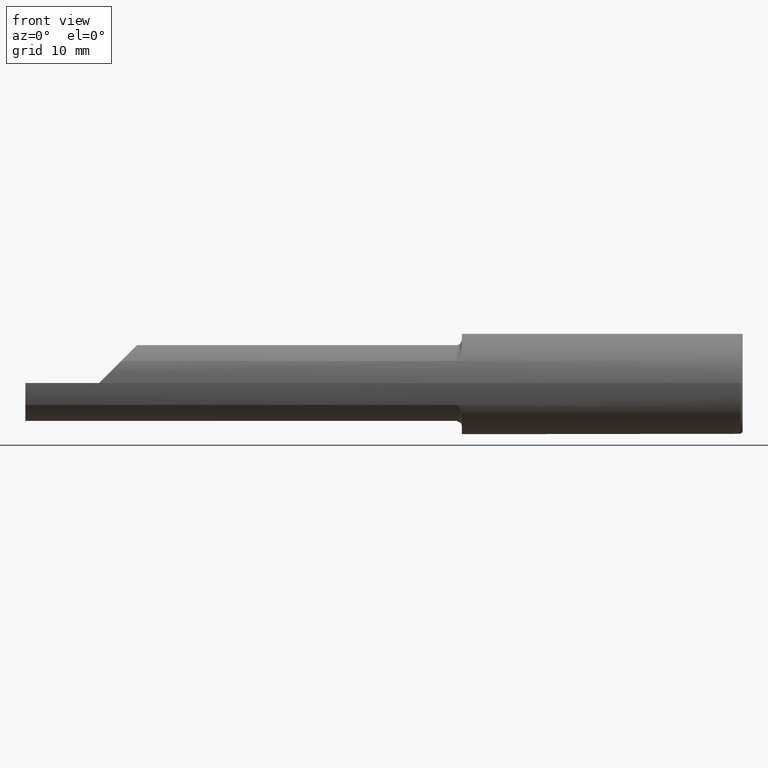
[diagram: clean part render]
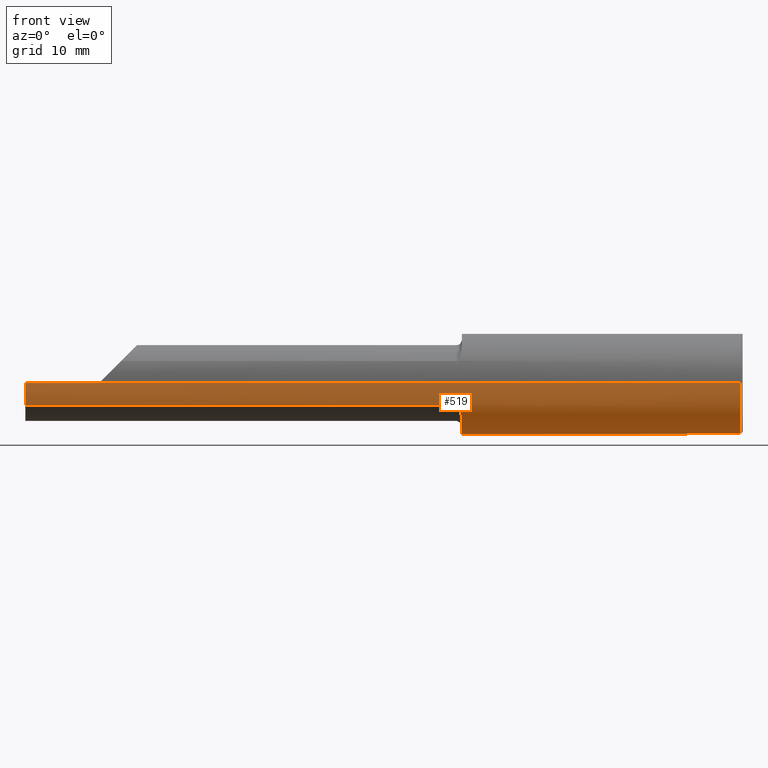
[diagram: same view with one face highlighted and labeled with its STEP entity id]
A machine part, front view. The second image highlights one B-rep face of the part: STEP entity #519.
In plain terms, the highlighted cylindrical surface (partial cylindrical patch) has radius 6.3462 mm, axis along (1, 0, -0).
Its self-contained STEP definition (entity closure, byte-faithful):
#8 = DIRECTION ( 'NONE',  ( 0.000000000000000000, 1.000000000000000000, 0.000000000000000000 ) ) ;
#11 = CARTESIAN_POINT ( 'NONE',  ( -1.370000000000000773, -0.1671052035161186000, -0.1859846937724914939 ) ) ;
#59 = LINE ( 'NONE', #908, #350 ) ;
#60 = VERTEX_POINT ( 'NONE', #581 ) ;
#73 = CARTESIAN_POINT ( 'NONE',  ( -1.393766764954792459, -0.2258019038076130303, -0.1069510296203706190 ) ) ;
#79 = CARTESIAN_POINT ( 'NONE',  ( -3.500000000000000000, -0.2258019038076149176, -0.1069510296203672051 ) ) ;
#96 = CIRCLE ( 'NONE', #554, 0.2498499999999999888 ) ;
#112 = AXIS2_PLACEMENT_3D ( 'NONE', #845, #846, #8 ) ;
#120 = VERTEX_POINT ( 'NONE', #480 ) ;
#124 = CARTESIAN_POINT ( 'NONE',  ( -1.370000000000000329, 0.2498500000000001831, 0.000000000000000000 ) ) ;
#131 = CARTESIAN_POINT ( 'NONE',  ( -1.387712610578066830, -0.2232268177254515262, -0.1122435923601519947 ) ) ;
#150 = LINE ( 'NONE', #428, #411 ) ;
#174 = VERTEX_POINT ( 'NONE', #747 ) ;
#186 = VERTEX_POINT ( 'NONE', #342 ) ;
#205 = CARTESIAN_POINT ( 'NONE',  ( -1.390683622228453098, -0.2249211699927296249, -0.1087936126742942017 ) ) ;
#215 = CARTESIAN_POINT ( 'NONE',  ( -1.370394743209660371, -0.1740183947823799038, -0.1795343264900133018 ) ) ;
#226 = CIRCLE ( 'NONE', #112, 0.2498499999999999888 ) ;
#247 = ORIENTED_EDGE ( 'NONE', *, *, #885, .F. ) ;
#250 = B_SPLINE_CURVE_WITH_KNOTS ( 'NONE', 3,
 ( #415, #73, #553, #205, #773, #131, #705, #345, #633, #499, #573, #497, #441, #215, #11, #791 ),
 .UNSPECIFIED., .F., .F.,
 ( 4, 2, 2, 2, 2, 2, 2, 4 ),
 ( 1.967731640786029342E-07, 9.266832530623622752E-05, 0.0001851398774483938546, 0.0003700829817327091088, 0.0007399691903013483991, 0.001479741607438627088, 0.002219514024575906970, 0.002959286441713187069 ),
 .UNSPECIFIED. ) ;
#261 = DIRECTION ( 'NONE',  ( 1.000000000000000000, 1.224646799147351728E-16, -0.000000000000000000 ) ) ;
#267 = VERTEX_POINT ( 'NONE', #79 ) ;
#291 = DIRECTION ( 'NONE',  ( 1.000000000000000000, 1.224646799147351728E-16, -0.000000000000000000 ) ) ;
#296 = VERTEX_POINT ( 'NONE', #124 ) ;
#302 = VERTEX_POINT ( 'NONE', #489 ) ;
#304 = EDGE_CURVE ( 'NONE', #186, #120, #59, .T. ) ;
#312 = DIRECTION ( 'NONE',  ( -1.000000000000000000, -1.224646799147367998E-16, 0.000000000000000000 ) ) ;
#335 = DIRECTION ( 'NONE',  ( 1.000000000000000000, 7.384505942868129093E-18, 0.000000000000000000 ) ) ;
#342 = CARTESIAN_POINT ( 'NONE',  ( -3.139999999999999680, -0.2498500000000000443, 0.000000000000000000 ) ) ;
#345 = CARTESIAN_POINT ( 'NONE',  ( -1.383599192740056827, -0.2192187664759567278, -0.1199465908399910824 ) ) ;
#349 = EDGE_CURVE ( 'NONE', #60, #296, #596, .T. ) ;
#350 = VECTOR ( 'NONE', #291, 39.37007874015748143 ) ;
#368 = ORIENTED_EDGE ( 'NONE', *, *, #485, .T. ) ;
#372 = ORIENTED_EDGE ( 'NONE', *, *, #456, .T. ) ;
#373 = LINE ( 'NONE', #668, #844 ) ;
#398 = ORIENTED_EDGE ( 'NONE', *, *, #800, .T. ) ;
#411 = VECTOR ( 'NONE', #647, 39.37007874015748143 ) ;
#415 = CARTESIAN_POINT ( 'NONE',  ( -1.395000000000000240, -0.2258019038076141960, -0.1069510296203689120 ) ) ;
#428 = CARTESIAN_POINT ( 'NONE',  ( -3.500000000000000000, -0.2498500000000000720, 0.000000000000000000 ) ) ;
#439 = DIRECTION ( 'NONE',  ( -1.195901037850825602E-16, 1.000000000000000000, 0.000000000000000000 ) ) ;
#441 = CARTESIAN_POINT ( 'NONE',  ( -1.371924696059273918, -0.1871283507626224085, -0.1658250778734021436 ) ) ;
#455 = CARTESIAN_POINT ( 'NONE',  ( -0.01000000000000016674, 3.661693929450580693E-16, 0.000000000000000000 ) ) ;
#456 = EDGE_CURVE ( 'NONE', #174, #120, #96, .T. ) ;
#460 = VERTEX_POINT ( 'NONE', #811 ) ;
#480 = CARTESIAN_POINT ( 'NONE',  ( -0.01000000000000013725, -0.2498499999999996279, 3.059780027669661931E-17 ) ) ;
#485 = EDGE_CURVE ( 'NONE', #267, #302, #373, .T. ) ;
#489 = CARTESIAN_POINT ( 'NONE',  ( -1.395000000000000240, -0.2258019038076141960, -0.1069510296203689120 ) ) ;
#497 = CARTESIAN_POINT ( 'NONE',  ( -1.373067695838075863, -0.1933460832554975417, -0.1585269497938202321 ) ) ;
#499 = CARTESIAN_POINT ( 'NONE',  ( -1.378062043806189907, -0.2099213682548084214, -0.1358028076871574397 ) ) ;
#519 = ADVANCED_FACE ( 'NONE', ( #823 ), #528, .T. ) ;
#528 = CYLINDRICAL_SURFACE ( 'NONE', #852, 0.2498499999999999888 ) ;
#539 = CARTESIAN_POINT ( 'NONE',  ( -3.500000000000000000, -6.123233995736759873E-17, 0.000000000000000000 ) ) ;
#542 = ORIENTED_EDGE ( 'NONE', *, *, #768, .T. ) ;
#553 = CARTESIAN_POINT ( 'NONE',  ( -1.392621204867378060, -0.2255690416234729934, -0.1074438938734567084 ) ) ;
#554 = AXIS2_PLACEMENT_3D ( 'NONE', #455, #312, #439 ) ;
#573 = CARTESIAN_POINT ( 'NONE',  ( -1.376157214307795584, -0.2047183078027734193, -0.1435406429257688743 ) ) ;
#581 = CARTESIAN_POINT ( 'NONE',  ( -1.370000000000000329, -0.1598366399465579180, -0.1920345568656702251 ) ) ;
#596 = CIRCLE ( 'NONE', #736, 0.2498499999999999888 ) ;
#607 = DIRECTION ( 'NONE',  ( 0.000000000000000000, 1.000000000000000000, 0.000000000000000000 ) ) ;
#633 = CARTESIAN_POINT ( 'NONE',  ( -1.382072761667481275, -0.2169747454531453512, -0.1239680304230255520 ) ) ;
#647 = DIRECTION ( 'NONE',  ( 1.000000000000000000, 1.224646799147351728E-16, -0.000000000000000000 ) ) ;
#660 = EDGE_CURVE ( 'NONE', #460, #267, #226, .T. ) ;
#668 = CARTESIAN_POINT ( 'NONE',  ( -2.368799582771863754, -0.2258019038076140295, -0.1069510296203688010 ) ) ;
#681 = EDGE_LOOP ( 'NONE', ( #867, #247, #698, #368, #542, #729, #398, #372 ) ) ;
#690 = VECTOR ( 'NONE', #728, 39.37007874015748143 ) ;
#698 = ORIENTED_EDGE ( 'NONE', *, *, #660, .T. ) ;
#705 = CARTESIAN_POINT ( 'NONE',  ( -1.386600878232105538, -0.2222589477840648808, -0.1141522670044897714 ) ) ;
#723 = LINE ( 'NONE', #857, #690 ) ;
#728 = DIRECTION ( 'NONE',  ( 1.000000000000000000, 1.224646799147351728E-16, -0.000000000000000000 ) ) ;
#729 = ORIENTED_EDGE ( 'NONE', *, *, #349, .T. ) ;
#736 = AXIS2_PLACEMENT_3D ( 'NONE', #785, #335, #855 ) ;
#747 = CARTESIAN_POINT ( 'NONE',  ( -0.01000000000000019623, 0.2498500000000003496, 0.000000000000000000 ) ) ;
#768 = EDGE_CURVE ( 'NONE', #302, #60, #250, .T. ) ;
#773 = CARTESIAN_POINT ( 'NONE',  ( -1.389886957248370969, -0.2245222508766560043, -0.1096163070930409322 ) ) ;
#785 = CARTESIAN_POINT ( 'NONE',  ( -1.370000000000000329, 1.996174282610182294E-16, 0.000000000000000000 ) ) ;
#791 = CARTESIAN_POINT ( 'NONE',  ( -1.370000000000000329, -0.1598366399465579180, -0.1920345568656702251 ) ) ;
#800 = EDGE_CURVE ( 'NONE', #296, #174, #723, .T. ) ;
#811 = CARTESIAN_POINT ( 'NONE',  ( -3.500000000000000000, -0.2498500000000000720, 0.000000000000000000 ) ) ;
#823 = FACE_OUTER_BOUND ( 'NONE', #681, .T. ) ;
#844 = VECTOR ( 'NONE', #874, 39.37007874015748143 ) ;
#845 = CARTESIAN_POINT ( 'NONE',  ( -3.500000000000000000, -6.123233995736759873E-17, 0.000000000000000000 ) ) ;
#846 = DIRECTION ( 'NONE',  ( 1.000000000000000000, 1.224646799147351728E-16, -0.000000000000000000 ) ) ;
#852 = AXIS2_PLACEMENT_3D ( 'NONE', #539, #261, #607 ) ;
#855 = DIRECTION ( 'NONE',  ( 0.000000000000000000, -1.000000000000000000, 0.000000000000000000 ) ) ;
#857 = CARTESIAN_POINT ( 'NONE',  ( -3.500000000000000000, 0.2498499999999999333, 0.000000000000000000 ) ) ;
#867 = ORIENTED_EDGE ( 'NONE', *, *, #304, .F. ) ;
#874 = DIRECTION ( 'NONE',  ( 1.000000000000000000, 7.384505942868129093E-18, 0.000000000000000000 ) ) ;
#885 = EDGE_CURVE ( 'NONE', #460, #186, #150, .T. ) ;
#908 = CARTESIAN_POINT ( 'NONE',  ( -3.500000000000000000, -0.2498500000000000720, 3.059780027669661931E-17 ) ) ;